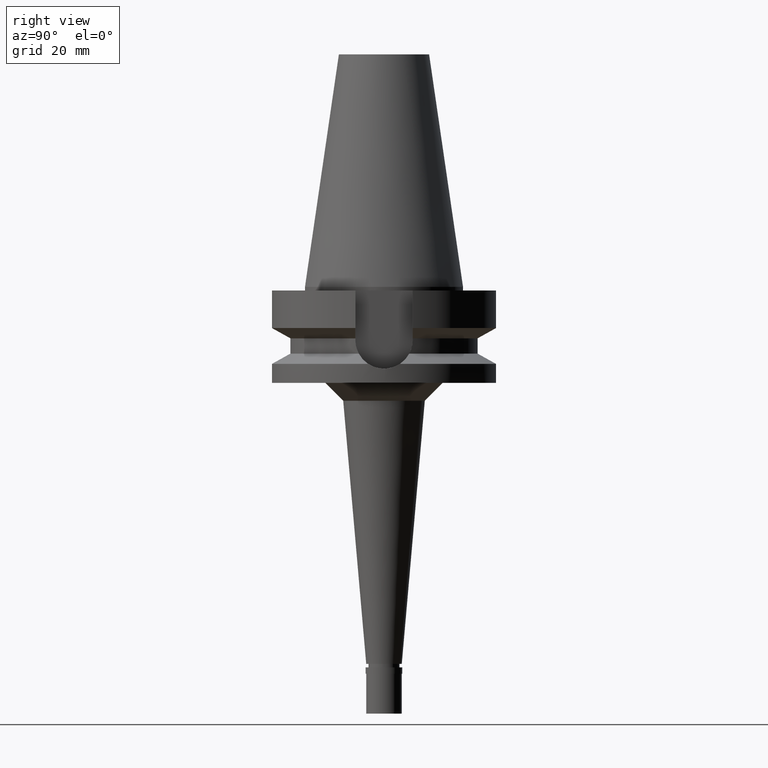
[diagram: clean part render]
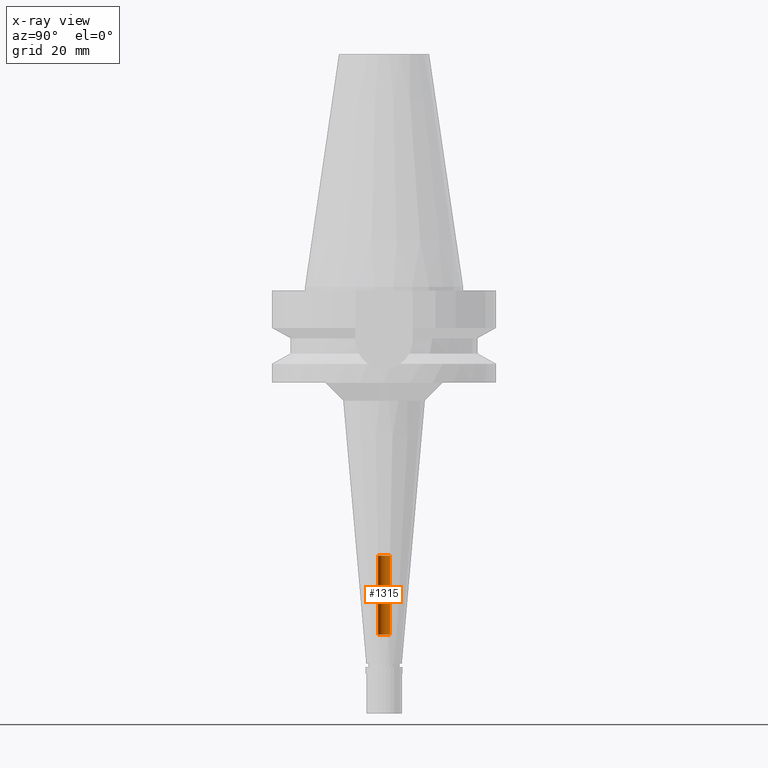
[diagram: x-ray — body ghosted, one internal face saturated and labeled with its STEP entity id]
A machine part, right view, then the same camera in x-ray: the body is ghosted and one INTERNAL B-rep face — a face not visible from any outside direction — is saturated and labeled: STEP entity #1315.
In plain terms, the highlighted cylindrical surface (edge-blend (fillet) strip) has radius 1.7 mm, axis along (0, 0, -1).
Its self-contained STEP definition (entity closure, byte-faithful):
#82 = VECTOR ( 'NONE', #1091, 1000.000000000000000 ) ;
#86 = CYLINDRICAL_SURFACE ( 'NONE', #1836, 1.699999999999999956 ) ;
#103 = DIRECTION ( 'NONE',  ( 0.0000000000000000000, 0.0000000000000000000, 1.000000000000000000 ) ) ;
#112 = DIRECTION ( 'NONE',  ( 0.0000000000000000000, 0.0000000000000000000, -1.000000000000000000 ) ) ;
#283 = FACE_OUTER_BOUND ( 'NONE', #2079, .T. ) ;
#317 = EDGE_CURVE ( 'NONE', #2439, #2142, #2595, .T. ) ;
#347 = EDGE_CURVE ( 'NONE', #1758, #2176, #2154, .T. ) ;
#367 = CARTESIAN_POINT ( 'NONE',  ( 0.0000000000000000000, 1.699999999999999956, -97.79999999999999716 ) ) ;
#398 = CARTESIAN_POINT ( 'NONE',  ( 0.0000000000000000000, 1.699999999999999956, -75.59999999999999432 ) ) ;
#423 = ORIENTED_EDGE ( 'NONE', *, *, #555, .F. ) ;
#451 = ORIENTED_EDGE ( 'NONE', *, *, #759, .T. ) ;
#509 = CARTESIAN_POINT ( 'NONE',  ( 0.0000000000000000000, 2.136824967491999859E-14, 74.48499999999999943 ) ) ;
#555 = EDGE_CURVE ( 'NONE', #1758, #2142, #1737, .T. ) ;
#590 = DIRECTION ( 'NONE',  ( 0.0000000000000000000, 0.0000000000000000000, 1.000000000000000000 ) ) ;
#759 = EDGE_CURVE ( 'NONE', #2176, #2439, #1745, .T. ) ;
#795 = DIRECTION ( 'NONE',  ( 0.0000000000000000000, -1.000000000000000000, 0.0000000000000000000 ) ) ;
#805 = CARTESIAN_POINT ( 'NONE',  ( 0.0000000000000000000, 2.136824967491999859E-14, -75.59999999999999432 ) ) ;
#960 = VECTOR ( 'NONE', #103, 1000.000000000000000 ) ;
#1091 = DIRECTION ( 'NONE',  ( 0.0000000000000000000, 0.0000000000000000000, 1.000000000000000000 ) ) ;
#1315 = ADVANCED_FACE ( 'NONE', ( #283 ), #86, .F. ) ;
#1383 = ORIENTED_EDGE ( 'NONE', *, *, #317, .T. ) ;
#1430 = CARTESIAN_POINT ( 'NONE',  ( 0.0000000000000000000, -1.699999999999999956, -97.79999999999999716 ) ) ;
#1434 = AXIS2_PLACEMENT_3D ( 'NONE', #2386, #112, #2893 ) ;
#1737 = LINE ( 'NONE', #2683, #82 ) ;
#1745 = LINE ( 'NONE', #367, #960 ) ;
#1758 = VERTEX_POINT ( 'NONE', #1430 ) ;
#1836 = AXIS2_PLACEMENT_3D ( 'NONE', #509, #2825, #795 ) ;
#2079 = EDGE_LOOP ( 'NONE', ( #1383, #423, #2701, #451 ) ) ;
#2142 = VERTEX_POINT ( 'NONE', #2619 ) ;
#2154 = CIRCLE ( 'NONE', #1434, 1.699999999999999956 ) ;
#2176 = VERTEX_POINT ( 'NONE', #2228 ) ;
#2228 = CARTESIAN_POINT ( 'NONE',  ( 0.0000000000000000000, 1.699999999999999956, -97.79999999999999716 ) ) ;
#2386 = CARTESIAN_POINT ( 'NONE',  ( 0.0000000000000000000, 2.136824967491999859E-14, -97.79999999999999716 ) ) ;
#2439 = VERTEX_POINT ( 'NONE', #398 ) ;
#2595 = CIRCLE ( 'NONE', #2735, 1.699999999999999956 ) ;
#2619 = CARTESIAN_POINT ( 'NONE',  ( 0.0000000000000000000, -1.699999999999999956, -75.59999999999999432 ) ) ;
#2656 = DIRECTION ( 'NONE',  ( 0.0000000000000000000, 1.000000000000000000, 0.0000000000000000000 ) ) ;
#2683 = CARTESIAN_POINT ( 'NONE',  ( 0.0000000000000000000, -1.699999999999999956, -97.79999999999999716 ) ) ;
#2701 = ORIENTED_EDGE ( 'NONE', *, *, #347, .T. ) ;
#2735 = AXIS2_PLACEMENT_3D ( 'NONE', #805, #590, #2656 ) ;
#2825 = DIRECTION ( 'NONE',  ( 0.0000000000000000000, 0.0000000000000000000, -1.000000000000000000 ) ) ;
#2893 = DIRECTION ( 'NONE',  ( 0.0000000000000000000, -1.000000000000000000, 0.0000000000000000000 ) ) ;